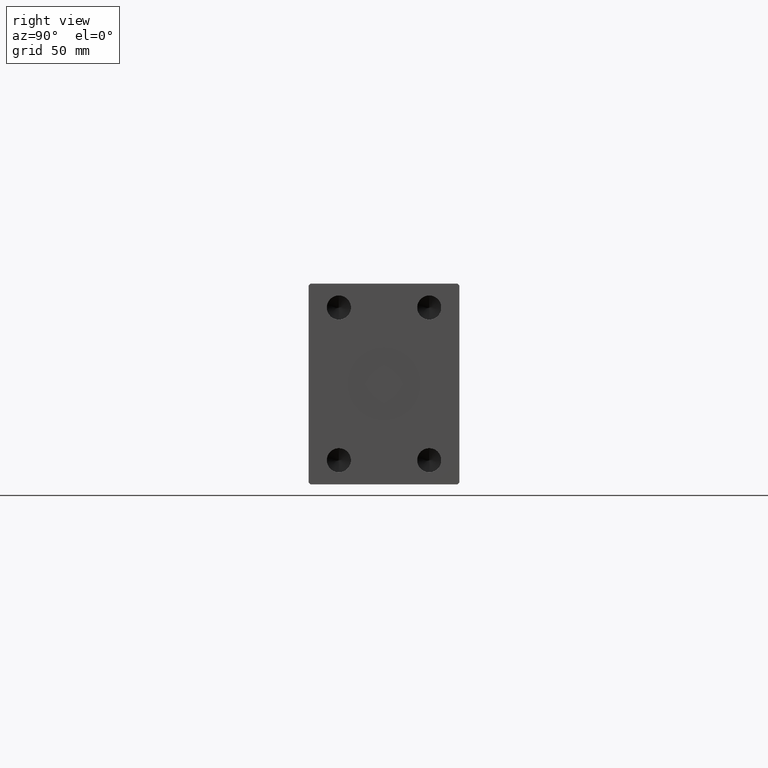
[diagram: clean part render]
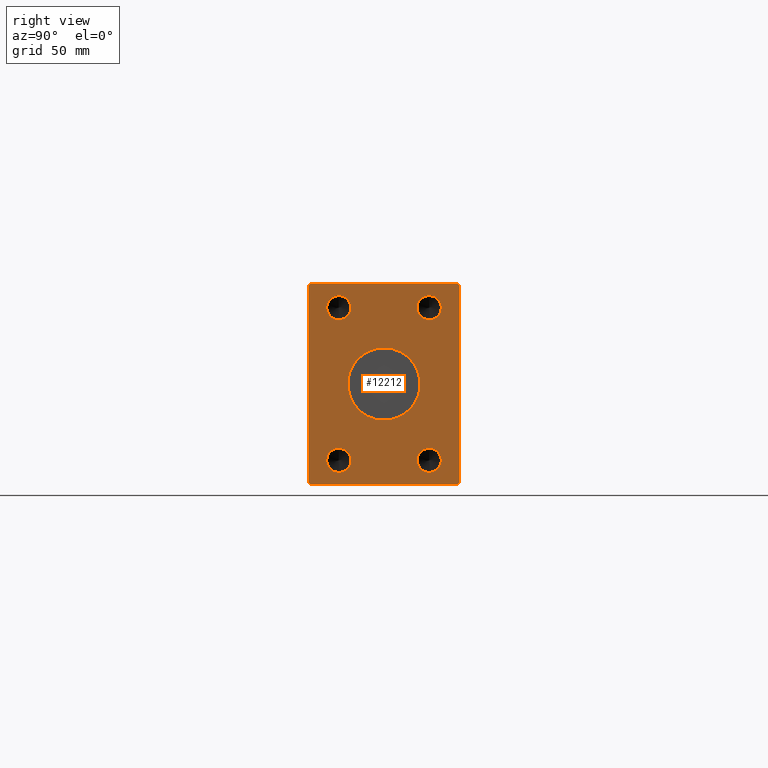
[diagram: same view with one face highlighted and labeled with its STEP entity id]
A machine part, right view. The second image highlights one B-rep face of the part: STEP entity #12212.
In plain terms, the highlighted planar face has unit normal (1, 0, 0).
Its self-contained STEP definition (entity closure, byte-faithful):
#253 = VERTEX_POINT ( 'NONE', #35587 ) ;
#1028 = CARTESIAN_POINT ( 'NONE',  ( 302.0000000000000000, -22.50000000000000000, 32.00000000000000000 ) ) ;
#1091 = AXIS2_PLACEMENT_3D ( 'NONE', #3447, #11256, #27412 ) ;
#1363 = DIRECTION ( 'NONE',  ( 0.000000000000000000, 0.000000000000000000, -1.000000000000000000 ) ) ;
#1517 = AXIS2_PLACEMENT_3D ( 'NONE', #24316, #20954, #27901 ) ;
#1739 = EDGE_CURVE ( 'NONE', #4821, #42643, #38199, .T. ) ;
#1967 = CARTESIAN_POINT ( 'NONE',  ( 302.0000000000000000, -36.50000000000000711, -50.00000000000000000 ) ) ;
#2093 = CARTESIAN_POINT ( 'NONE',  ( 302.0000000000000000, 36.50000000000000711, 50.00000000000000000 ) ) ;
#2200 = CARTESIAN_POINT ( 'NONE',  ( 302.0000000000000000, 37.50000000000000711, 49.00000000000000000 ) ) ;
#2228 = AXIS2_PLACEMENT_3D ( 'NONE', #7066, #16469, #13343 ) ;
#2544 = EDGE_LOOP ( 'NONE', ( #32735, #30872 ) ) ;
#2716 = AXIS2_PLACEMENT_3D ( 'NONE', #43065, #36773, #5852 ) ;
#3114 = AXIS2_PLACEMENT_3D ( 'NONE', #7380, #17241, #8032 ) ;
#3447 = CARTESIAN_POINT ( 'NONE',  ( 302.0000000000000000, 0.000000000000000000, 0.000000000000000000 ) ) ;
#3950 = CIRCLE ( 'NONE', #1091, 18.00000000000000000 ) ;
#4572 = DIRECTION ( 'NONE',  ( 0.000000000000000000, 0.7071067811865500152, -0.7071067811865451302 ) ) ;
#4815 = VECTOR ( 'NONE', #9175, 1000.000000000000000 ) ;
#4821 = VERTEX_POINT ( 'NONE', #13635 ) ;
#5597 = CARTESIAN_POINT ( 'NONE',  ( 302.0000000000000000, 22.50000000000000000, 44.00000000000000000 ) ) ;
#5765 = LINE ( 'NONE', #1967, #5924 ) ;
#5852 = DIRECTION ( 'NONE',  ( 0.000000000000000000, 0.000000000000000000, -1.000000000000000000 ) ) ;
#5924 = VECTOR ( 'NONE', #36028, 1000.000000000000000 ) ;
#5926 = VERTEX_POINT ( 'NONE', #28597 ) ;
#6036 = CARTESIAN_POINT ( 'NONE',  ( 302.0000000000000000, 37.50000000000000711, -49.00000000000000000 ) ) ;
#6186 = DIRECTION ( 'NONE',  ( 1.000000000000000000, -0.000000000000000000, -0.000000000000000000 ) ) ;
#6576 = DIRECTION ( 'NONE',  ( 0.000000000000000000, 0.000000000000000000, -1.000000000000000000 ) ) ;
#6765 = EDGE_CURVE ( 'NONE', #28202, #4821, #15201, .T. ) ;
#6794 = DIRECTION ( 'NONE',  ( 1.000000000000000000, -0.000000000000000000, -0.000000000000000000 ) ) ;
#6955 = FACE_OUTER_BOUND ( 'NONE', #21560, .T. ) ;
#7066 = CARTESIAN_POINT ( 'NONE',  ( 302.0000000000000000, -22.50000000000000000, 38.00000000000000000 ) ) ;
#7374 = CARTESIAN_POINT ( 'NONE',  ( 302.0000000000000000, 0.000000000000000000, 0.000000000000000000 ) ) ;
#7380 = CARTESIAN_POINT ( 'NONE',  ( 302.0000000000000000, 22.50000000000000000, 38.00000000000000000 ) ) ;
#7727 = AXIS2_PLACEMENT_3D ( 'NONE', #44276, #6186, #33751 ) ;
#8032 = DIRECTION ( 'NONE',  ( 0.000000000000000000, 0.000000000000000000, -1.000000000000000000 ) ) ;
#8259 = CIRCLE ( 'NONE', #26141, 5.999999999999998224 ) ;
#8753 = ORIENTED_EDGE ( 'NONE', *, *, #35866, .T. ) ;
#8810 = CARTESIAN_POINT ( 'NONE',  ( 302.0000000000000000, -36.50000000000001421, 49.99999999999998579 ) ) ;
#9175 = DIRECTION ( 'NONE',  ( 0.000000000000000000, 0.000000000000000000, 1.000000000000000000 ) ) ;
#9477 = EDGE_CURVE ( 'NONE', #31136, #34173, #25818, .T. ) ;
#9515 = EDGE_LOOP ( 'NONE', ( #18485, #14527 ) ) ;
#9640 = FACE_BOUND ( 'NONE', #21180, .T. ) ;
#9958 = ORIENTED_EDGE ( 'NONE', *, *, #44264, .T. ) ;
#10439 = CARTESIAN_POINT ( 'NONE',  ( 302.0000000000000000, 36.50000000000000711, -50.00000000000000000 ) ) ;
#10596 = CARTESIAN_POINT ( 'NONE',  ( 302.0000000000000000, -22.50000000000000000, -38.00000000000000711 ) ) ;
#11180 = DIRECTION ( 'NONE',  ( 0.000000000000000000, 0.000000000000000000, -1.000000000000000000 ) ) ;
#11256 = DIRECTION ( 'NONE',  ( 1.000000000000000000, 0.000000000000000000, 0.000000000000000000 ) ) ;
#11815 = ORIENTED_EDGE ( 'NONE', *, *, #38646, .F. ) ;
#11863 = AXIS2_PLACEMENT_3D ( 'NONE', #37743, #25543, #1363 ) ;
#12175 = LINE ( 'NONE', #2093, #27384 ) ;
#12212 = ADVANCED_FACE ( 'NONE', ( #41022, #17035, #16808, #9640, #43715, #6955 ), #30493, .T. ) ;
#13343 = DIRECTION ( 'NONE',  ( 0.000000000000000000, 0.000000000000000000, -1.000000000000000000 ) ) ;
#13635 = CARTESIAN_POINT ( 'NONE',  ( 302.0000000000000000, -37.50000000000001421, -49.00000000000000000 ) ) ;
#14107 = CARTESIAN_POINT ( 'NONE',  ( 302.0000000000000000, 22.50000000000000000, -32.00000000000000000 ) ) ;
#14390 = EDGE_CURVE ( 'NONE', #30126, #17011, #24413, .T. ) ;
#14527 = ORIENTED_EDGE ( 'NONE', *, *, #42315, .F. ) ;
#15114 = VERTEX_POINT ( 'NONE', #16477 ) ;
#15201 = LINE ( 'NONE', #21484, #26454 ) ;
#15252 = CIRCLE ( 'NONE', #3114, 5.999999999999998224 ) ;
#15989 = CARTESIAN_POINT ( 'NONE',  ( 302.0000000000000000, -36.50000000000000711, -50.00000000000000000 ) ) ;
#16040 = VERTEX_POINT ( 'NONE', #5597 ) ;
#16316 = CIRCLE ( 'NONE', #7727, 5.999999999999998224 ) ;
#16469 = DIRECTION ( 'NONE',  ( 1.000000000000000000, -0.000000000000000000, -0.000000000000000000 ) ) ;
#16477 = CARTESIAN_POINT ( 'NONE',  ( 302.0000000000000000, 22.50000000000000000, -44.00000000000000000 ) ) ;
#16784 = ORIENTED_EDGE ( 'NONE', *, *, #17942, .T. ) ;
#16808 = FACE_BOUND ( 'NONE', #2544, .T. ) ;
#17011 = VERTEX_POINT ( 'NONE', #41275 ) ;
#17035 = FACE_BOUND ( 'NONE', #41540, .T. ) ;
#17241 = DIRECTION ( 'NONE',  ( 1.000000000000000000, -0.000000000000000000, -0.000000000000000000 ) ) ;
#17257 = DIRECTION ( 'NONE',  ( 0.000000000000000000, 0.000000000000000000, -1.000000000000000000 ) ) ;
#17560 = CIRCLE ( 'NONE', #11863, 5.999999999999998224 ) ;
#17604 = AXIS2_PLACEMENT_3D ( 'NONE', #7374, #24185, #27102 ) ;
#17942 = EDGE_CURVE ( 'NONE', #5926, #33057, #12175, .T. ) ;
#18485 = ORIENTED_EDGE ( 'NONE', *, *, #30147, .F. ) ;
#18596 = EDGE_CURVE ( 'NONE', #42643, #43314, #5765, .T. ) ;
#19227 = CARTESIAN_POINT ( 'NONE',  ( 302.0000000000000000, -22.50000000000000000, 44.00000000000000000 ) ) ;
#20158 = VERTEX_POINT ( 'NONE', #41499 ) ;
#20237 = CARTESIAN_POINT ( 'NONE',  ( 302.0000000000000000, -22.50000000000000000, -44.00000000000000711 ) ) ;
#20525 = EDGE_CURVE ( 'NONE', #16040, #32883, #15252, .T. ) ;
#20620 = AXIS2_PLACEMENT_3D ( 'NONE', #24548, #38227, #21398 ) ;
#20782 = VECTOR ( 'NONE', #4572, 1000.000000000000114 ) ;
#20954 = DIRECTION ( 'NONE',  ( 1.000000000000000000, -0.000000000000000000, -0.000000000000000000 ) ) ;
#21180 = EDGE_LOOP ( 'NONE', ( #34771, #11815 ) ) ;
#21236 = LINE ( 'NONE', #31560, #33520 ) ;
#21398 = DIRECTION ( 'NONE',  ( 0.000000000000000000, 0.000000000000000000, -1.000000000000000000 ) ) ;
#21484 = CARTESIAN_POINT ( 'NONE',  ( 302.0000000000000000, -37.50000000000001421, 48.99999999999998579 ) ) ;
#21560 = EDGE_LOOP ( 'NONE', ( #27311, #16784, #8753, #29812, #34454, #25206, #33289, #9958 ) ) ;
#22034 = CIRCLE ( 'NONE', #2716, 5.999999999999998224 ) ;
#22533 = ORIENTED_EDGE ( 'NONE', *, *, #31396, .F. ) ;
#22895 = CARTESIAN_POINT ( 'NONE',  ( 302.0000000000000000, 2.204364238465235428E-15, 18.00000000000000000 ) ) ;
#22943 = CARTESIAN_POINT ( 'NONE',  ( 302.0000000000000000, -37.50000000000001421, 48.99999999999998579 ) ) ;
#24072 = EDGE_LOOP ( 'NONE', ( #41592, #22533 ) ) ;
#24185 = DIRECTION ( 'NONE',  ( 1.000000000000000000, 0.000000000000000000, 0.000000000000000000 ) ) ;
#24316 = CARTESIAN_POINT ( 'NONE',  ( 302.0000000000000000, -22.50000000000000000, -38.00000000000000711 ) ) ;
#24413 = CIRCLE ( 'NONE', #1517, 5.999999999999998224 ) ;
#24548 = CARTESIAN_POINT ( 'NONE',  ( 302.0000000000000000, 22.50000000000000000, -38.00000000000000000 ) ) ;
#24767 = CIRCLE ( 'NONE', #17604, 18.00000000000000000 ) ;
#24844 = ORIENTED_EDGE ( 'NONE', *, *, #20525, .F. ) ;
#25206 = ORIENTED_EDGE ( 'NONE', *, *, #18596, .T. ) ;
#25543 = DIRECTION ( 'NONE',  ( 1.000000000000000000, -0.000000000000000000, -0.000000000000000000 ) ) ;
#25818 = CIRCLE ( 'NONE', #2228, 5.999999999999998224 ) ;
#26071 = VERTEX_POINT ( 'NONE', #2200 ) ;
#26141 = AXIS2_PLACEMENT_3D ( 'NONE', #10596, #6794, #6576 ) ;
#26454 = VECTOR ( 'NONE', #11180, 1000.000000000000000 ) ;
#27102 = DIRECTION ( 'NONE',  ( 0.000000000000000000, 0.000000000000000000, -1.000000000000000000 ) ) ;
#27311 = ORIENTED_EDGE ( 'NONE', *, *, #39205, .T. ) ;
#27384 = VECTOR ( 'NONE', #39525, 1000.000000000000000 ) ;
#27412 = DIRECTION ( 'NONE',  ( 0.000000000000000000, 0.000000000000000000, -1.000000000000000000 ) ) ;
#27881 = CARTESIAN_POINT ( 'NONE',  ( 302.0000000000000000, -37.50000000000001421, -49.00000000000000000 ) ) ;
#27901 = DIRECTION ( 'NONE',  ( 0.000000000000000000, 0.000000000000000000, -1.000000000000000000 ) ) ;
#28202 = VERTEX_POINT ( 'NONE', #22943 ) ;
#28597 = CARTESIAN_POINT ( 'NONE',  ( 302.0000000000000000, 36.50000000000000711, 50.00000000000000000 ) ) ;
#28995 = DIRECTION ( 'NONE',  ( 0.000000000000000000, -0.7071067811865474617, -0.7071067811865474617 ) ) ;
#29812 = ORIENTED_EDGE ( 'NONE', *, *, #6765, .T. ) ;
#30126 = VERTEX_POINT ( 'NONE', #20237 ) ;
#30147 = EDGE_CURVE ( 'NONE', #20158, #37033, #3950, .T. ) ;
#30493 = PLANE ( 'NONE',  #35108 ) ;
#30667 = DIRECTION ( 'NONE',  ( 0.000000000000000000, 0.7071067811865474617, 0.7071067811865474617 ) ) ;
#30872 = ORIENTED_EDGE ( 'NONE', *, *, #39900, .F. ) ;
#31136 = VERTEX_POINT ( 'NONE', #1028 ) ;
#31396 = EDGE_CURVE ( 'NONE', #34173, #31136, #17560, .T. ) ;
#31560 = CARTESIAN_POINT ( 'NONE',  ( 302.0000000000000000, 37.50000000000000711, 49.00000000000000000 ) ) ;
#31775 = DIRECTION ( 'NONE',  ( 0.000000000000000000, -0.7071067811865474617, 0.7071067811865474617 ) ) ;
#32735 = ORIENTED_EDGE ( 'NONE', *, *, #14390, .F. ) ;
#32883 = VERTEX_POINT ( 'NONE', #40106 ) ;
#33057 = VERTEX_POINT ( 'NONE', #33382 ) ;
#33289 = ORIENTED_EDGE ( 'NONE', *, *, #38201, .T. ) ;
#33382 = CARTESIAN_POINT ( 'NONE',  ( 302.0000000000000000, -36.50000000000001421, 49.99999999999998579 ) ) ;
#33407 = DIRECTION ( 'NONE',  ( 1.000000000000000000, 0.000000000000000000, 0.000000000000000000 ) ) ;
#33520 = VECTOR ( 'NONE', #31775, 1000.000000000000114 ) ;
#33751 = DIRECTION ( 'NONE',  ( 0.000000000000000000, 0.000000000000000000, -1.000000000000000000 ) ) ;
#34030 = LINE ( 'NONE', #34258, #42803 ) ;
#34173 = VERTEX_POINT ( 'NONE', #19227 ) ;
#34258 = CARTESIAN_POINT ( 'NONE',  ( 302.0000000000000000, 36.50000000000000711, -50.00000000000000000 ) ) ;
#34454 = ORIENTED_EDGE ( 'NONE', *, *, #1739, .T. ) ;
#34771 = ORIENTED_EDGE ( 'NONE', *, *, #37916, .F. ) ;
#35060 = LINE ( 'NONE', #8810, #41338 ) ;
#35108 = AXIS2_PLACEMENT_3D ( 'NONE', #44155, #33407, #17257 ) ;
#35415 = VERTEX_POINT ( 'NONE', #14107 ) ;
#35587 = CARTESIAN_POINT ( 'NONE',  ( 302.0000000000000000, 37.50000000000000711, -49.00000000000000000 ) ) ;
#35672 = CIRCLE ( 'NONE', #20620, 5.999999999999998224 ) ;
#35866 = EDGE_CURVE ( 'NONE', #33057, #28202, #35060, .T. ) ;
#36028 = DIRECTION ( 'NONE',  ( 0.000000000000000000, 1.000000000000000000, 0.000000000000000000 ) ) ;
#36773 = DIRECTION ( 'NONE',  ( 1.000000000000000000, -0.000000000000000000, -0.000000000000000000 ) ) ;
#37033 = VERTEX_POINT ( 'NONE', #22895 ) ;
#37687 = ORIENTED_EDGE ( 'NONE', *, *, #38499, .F. ) ;
#37743 = CARTESIAN_POINT ( 'NONE',  ( 302.0000000000000000, -22.50000000000000000, 38.00000000000000000 ) ) ;
#37916 = EDGE_CURVE ( 'NONE', #15114, #35415, #22034, .T. ) ;
#38199 = LINE ( 'NONE', #27881, #20782 ) ;
#38201 = EDGE_CURVE ( 'NONE', #43314, #253, #34030, .T. ) ;
#38227 = DIRECTION ( 'NONE',  ( 1.000000000000000000, -0.000000000000000000, -0.000000000000000000 ) ) ;
#38499 = EDGE_CURVE ( 'NONE', #32883, #16040, #16316, .T. ) ;
#38646 = EDGE_CURVE ( 'NONE', #35415, #15114, #35672, .T. ) ;
#39205 = EDGE_CURVE ( 'NONE', #26071, #5926, #21236, .T. ) ;
#39525 = DIRECTION ( 'NONE',  ( 0.000000000000000000, -1.000000000000000000, -1.901066822988281457E-16 ) ) ;
#39885 = LINE ( 'NONE', #6036, #4815 ) ;
#39900 = EDGE_CURVE ( 'NONE', #17011, #30126, #8259, .T. ) ;
#40106 = CARTESIAN_POINT ( 'NONE',  ( 302.0000000000000000, 22.50000000000000000, 32.00000000000000000 ) ) ;
#41022 = FACE_BOUND ( 'NONE', #9515, .T. ) ;
#41275 = CARTESIAN_POINT ( 'NONE',  ( 302.0000000000000000, -22.50000000000000000, -32.00000000000000711 ) ) ;
#41338 = VECTOR ( 'NONE', #28995, 1000.000000000000114 ) ;
#41499 = CARTESIAN_POINT ( 'NONE',  ( 302.0000000000000000, 0.000000000000000000, -18.00000000000000000 ) ) ;
#41540 = EDGE_LOOP ( 'NONE', ( #37687, #24844 ) ) ;
#41592 = ORIENTED_EDGE ( 'NONE', *, *, #9477, .F. ) ;
#42315 = EDGE_CURVE ( 'NONE', #37033, #20158, #24767, .T. ) ;
#42643 = VERTEX_POINT ( 'NONE', #15989 ) ;
#42803 = VECTOR ( 'NONE', #30667, 1000.000000000000114 ) ;
#43065 = CARTESIAN_POINT ( 'NONE',  ( 302.0000000000000000, 22.50000000000000000, -38.00000000000000000 ) ) ;
#43314 = VERTEX_POINT ( 'NONE', #10439 ) ;
#43715 = FACE_BOUND ( 'NONE', #24072, .T. ) ;
#44155 = CARTESIAN_POINT ( 'NONE',  ( 302.0000000000000000, 0.000000000000000000, 0.000000000000000000 ) ) ;
#44264 = EDGE_CURVE ( 'NONE', #253, #26071, #39885, .T. ) ;
#44276 = CARTESIAN_POINT ( 'NONE',  ( 302.0000000000000000, 22.50000000000000000, 38.00000000000000000 ) ) ;